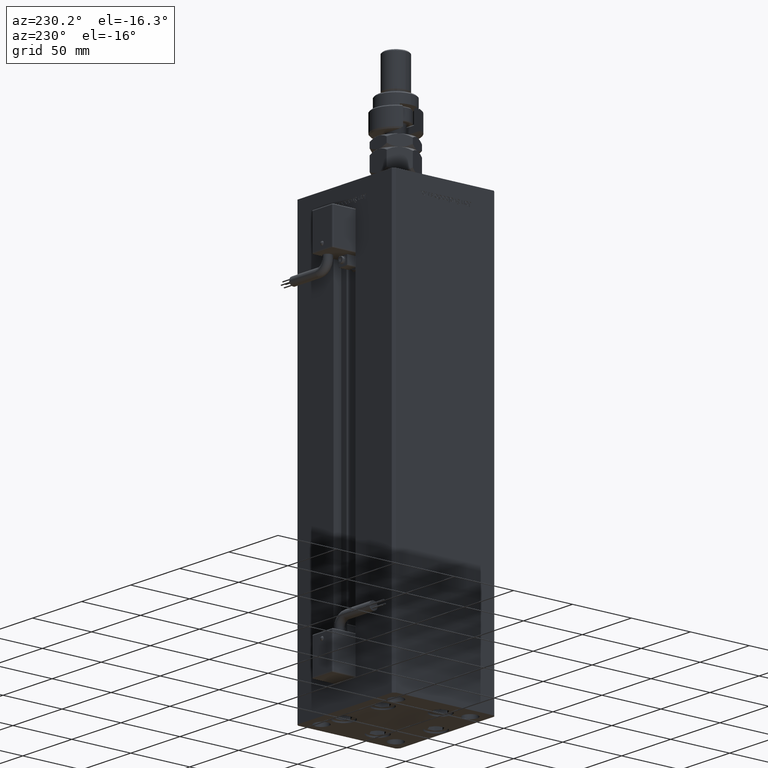
[diagram: clean part render]
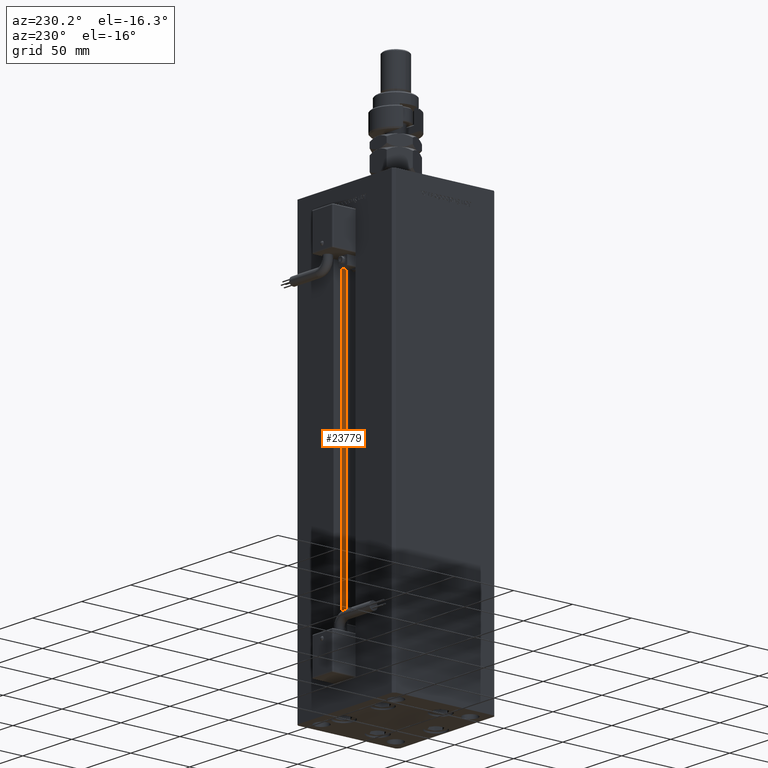
[diagram: same view with one face highlighted and labeled with its STEP entity id]
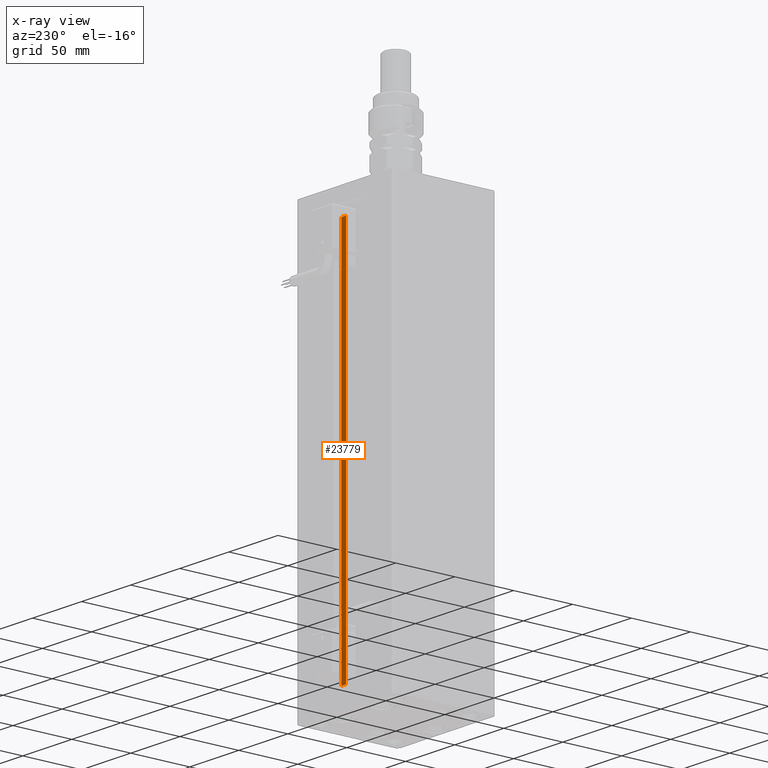
[diagram: x-ray of the same camera — body ghosted, the highlighted face saturated]
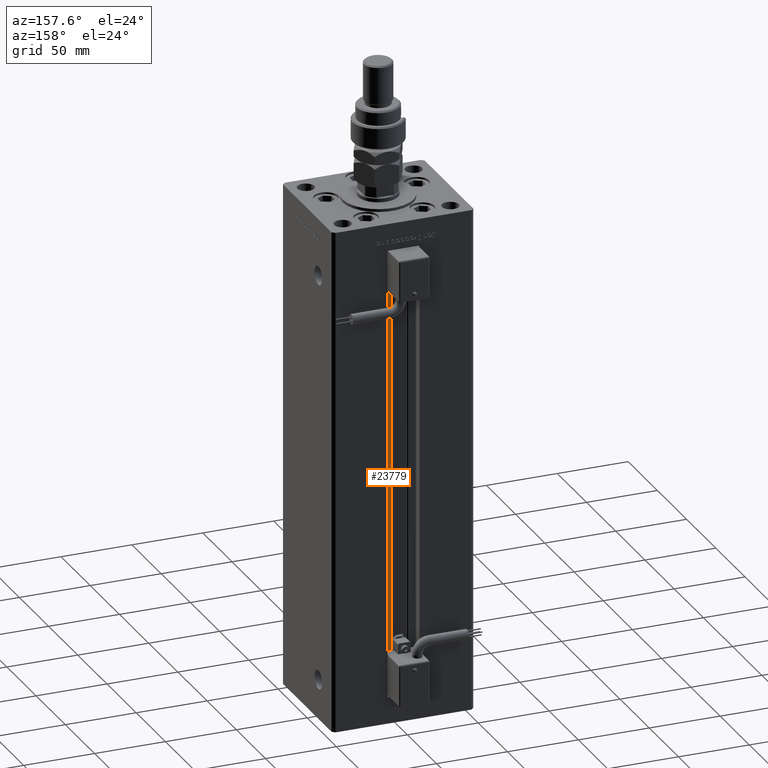
[diagram: same view with one face highlighted and labeled with its STEP entity id]
A machine part, auxiliary view. The second image highlights one B-rep face of the part: STEP entity #23779.
The next image is the same camera in x-ray: the body ghosted, the highlighted face saturated — about 0% of this face is hidden behind the body in this view.
A second angle (auxiliary view) of the same face is appended — the face is thin or edge-on in the first view.
In plain terms, the highlighted planar face has unit normal (0, -1, 0).
Its self-contained STEP definition (entity closure, byte-faithful):
#1623 = DIRECTION ( 'NONE',  ( -0.000000000000000000, -0.000000000000000000, 1.000000000000000000 ) ) ;
#1792 = VECTOR ( 'NONE', #55221, 1000.000000000000000 ) ;
#5713 = CARTESIAN_POINT ( 'NONE',  ( 11.24999999999999822, 36.99999999999999289, 0.000000000000000000 ) ) ;
#5942 = VECTOR ( 'NONE', #40135, 1000.000000000000000 ) ;
#6009 = EDGE_CURVE ( 'NONE', #22094, #19577, #28864, .T. ) ;
#8460 = CARTESIAN_POINT ( 'NONE',  ( 0.000000000000000000, 36.99999999999999289, 318.5000000000000000 ) ) ;
#8990 = PLANE ( 'NONE',  #35159 ) ;
#15049 = CARTESIAN_POINT ( 'NONE',  ( 6.183333333333997928, 36.99999999999999289, 0.000000000000000000 ) ) ;
#17072 = EDGE_CURVE ( 'NONE', #19577, #47580, #19519, .T. ) ;
#18449 = CARTESIAN_POINT ( 'NONE',  ( 6.183333333333997928, 36.99999999999999289, 318.5000000000000000 ) ) ;
#18522 = ORIENTED_EDGE ( 'NONE', *, *, #19788, .F. ) ;
#19085 = ORIENTED_EDGE ( 'NONE', *, *, #40304, .T. ) ;
#19519 = LINE ( 'NONE', #5713, #47968 ) ;
#19577 = VERTEX_POINT ( 'NONE', #48994 ) ;
#19788 = EDGE_CURVE ( 'NONE', #47580, #45674, #22275, .T. ) ;
#22094 = VERTEX_POINT ( 'NONE', #51685 ) ;
#22275 = LINE ( 'NONE', #8460, #5942 ) ;
#22360 = CARTESIAN_POINT ( 'NONE',  ( 11.24999999999999822, 36.99999999999999289, 318.5000000000000000 ) ) ;
#23144 = ORIENTED_EDGE ( 'NONE', *, *, #6009, .F. ) ;
#23779 = ADVANCED_FACE ( 'NONE', ( #49156 ), #8990, .F. ) ;
#26904 = DIRECTION ( 'NONE',  ( 0.000000000000000000, -1.000000000000000000, 0.000000000000000000 ) ) ;
#28864 = LINE ( 'NONE', #15049, #1792 ) ;
#31904 = EDGE_LOOP ( 'NONE', ( #53927, #23144, #19085, #18522 ) ) ;
#31948 = VECTOR ( 'NONE', #1623, 1000.000000000000000 ) ;
#35159 = AXIS2_PLACEMENT_3D ( 'NONE', #35986, #26904, #57676 ) ;
#35986 = CARTESIAN_POINT ( 'NONE',  ( 6.183333333333997928, 36.99999999999999289, 0.000000000000000000 ) ) ;
#40135 = DIRECTION ( 'NONE',  ( -1.000000000000000000, 0.000000000000000000, 0.000000000000000000 ) ) ;
#40304 = EDGE_CURVE ( 'NONE', #22094, #45674, #55017, .T. ) ;
#41209 = DIRECTION ( 'NONE',  ( -0.000000000000000000, -0.000000000000000000, 1.000000000000000000 ) ) ;
#45674 = VERTEX_POINT ( 'NONE', #18449 ) ;
#47580 = VERTEX_POINT ( 'NONE', #22360 ) ;
#47968 = VECTOR ( 'NONE', #41209, 1000.000000000000000 ) ;
#48994 = CARTESIAN_POINT ( 'NONE',  ( 11.24999999999999822, 36.99999999999999289, 0.000000000000000000 ) ) ;
#49156 = FACE_OUTER_BOUND ( 'NONE', #31904, .T. ) ;
#50608 = CARTESIAN_POINT ( 'NONE',  ( 6.183333333333997928, 36.99999999999999289, 0.000000000000000000 ) ) ;
#51685 = CARTESIAN_POINT ( 'NONE',  ( 6.183333333333997928, 36.99999999999999289, 0.000000000000000000 ) ) ;
#53927 = ORIENTED_EDGE ( 'NONE', *, *, #17072, .F. ) ;
#55017 = LINE ( 'NONE', #50608, #31948 ) ;
#55221 = DIRECTION ( 'NONE',  ( 1.000000000000000000, 0.000000000000000000, 0.000000000000000000 ) ) ;
#57676 = DIRECTION ( 'NONE',  ( 0.000000000000000000, -0.000000000000000000, -1.000000000000000000 ) ) ;